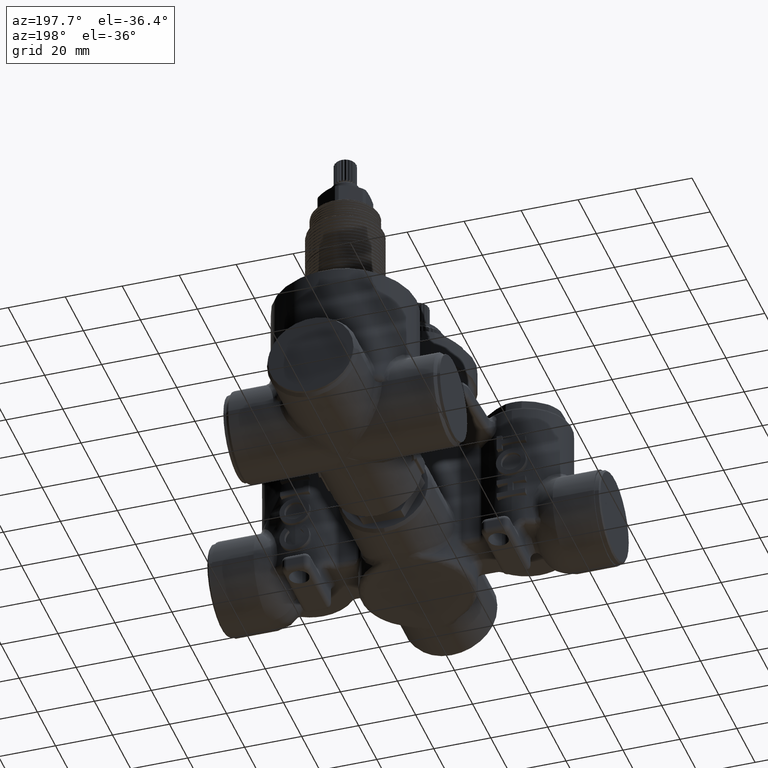
[diagram: clean part render]
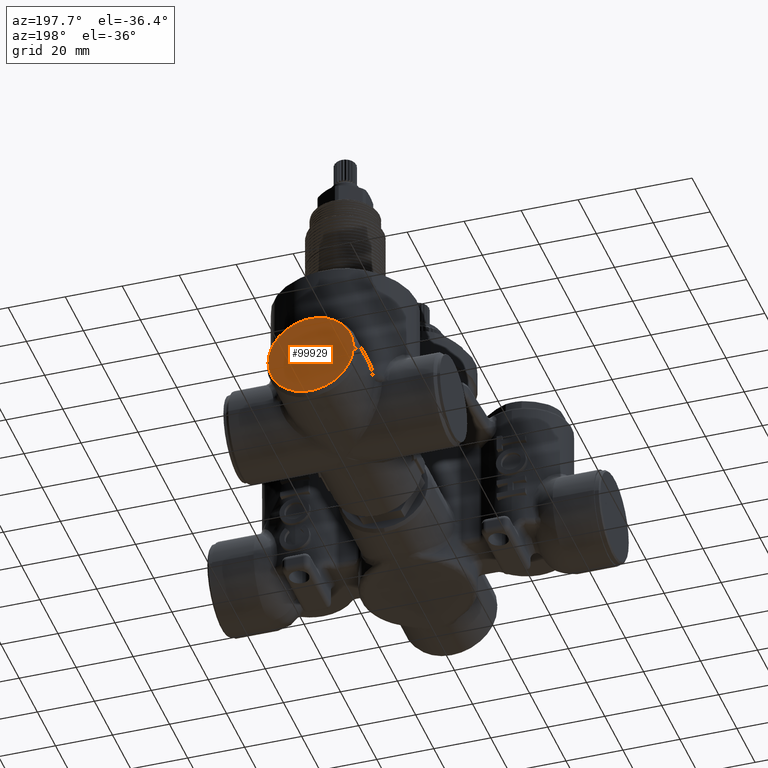
[diagram: same view with one face highlighted and labeled with its STEP entity id]
A machine part, auxiliary view. The second image highlights one B-rep face of the part: STEP entity #99929.
In plain terms, the highlighted planar face has unit normal (0, -1, 0).
Its self-contained STEP definition (entity closure, byte-faithful):
#33160=CARTESIAN_POINT('',(0.E0,4.646062992126E0,-2.35039E0));
#33161=DIRECTION('',(0.E0,1.E0,0.E0));
#33162=DIRECTION('',(-1.E0,0.E0,0.E0));
#33163=AXIS2_PLACEMENT_3D('',#33160,#33161,#33162);
#33165=CARTESIAN_POINT('',(0.E0,4.646062992126E0,-2.35039E0));
#33166=DIRECTION('',(0.E0,1.E0,0.E0));
#33167=DIRECTION('',(1.E0,0.E0,0.E0));
#33168=AXIS2_PLACEMENT_3D('',#33165,#33166,#33167);
#41206=CARTESIAN_POINT('',(-5.905511811024E-1,4.646062992126E0,-2.35039E0));
#41207=CARTESIAN_POINT('',(5.905511811024E-1,4.646062992126E0,-2.35039E0));
#41208=VERTEX_POINT('',#41206);
#41209=VERTEX_POINT('',#41207);
#99919=CARTESIAN_POINT('',(0.E0,4.646062992126E0,-2.35039E0));
#99920=DIRECTION('',(0.E0,-1.E0,0.E0));
#99921=DIRECTION('',(-1.E0,0.E0,0.E0));
#99922=AXIS2_PLACEMENT_3D('',#99919,#99920,#99921);
#99923=PLANE('',#99922);
#99924=ORIENTED_EDGE('',*,*,#99909,.F.);
#99926=ORIENTED_EDGE('',*,*,#99925,.F.);
#99927=EDGE_LOOP('',(#99924,#99926));
#99928=FACE_OUTER_BOUND('',#99927,.F.);
#99929=ADVANCED_FACE('',(#99928),#99923,.F.);
#33164=CIRCLE('',#33163,5.905511811024E-1);
#33169=CIRCLE('',#33168,5.905511811024E-1);
#99909=EDGE_CURVE('',#41208,#41209,#33164,.T.);
#99925=EDGE_CURVE('',#41209,#41208,#33169,.T.);